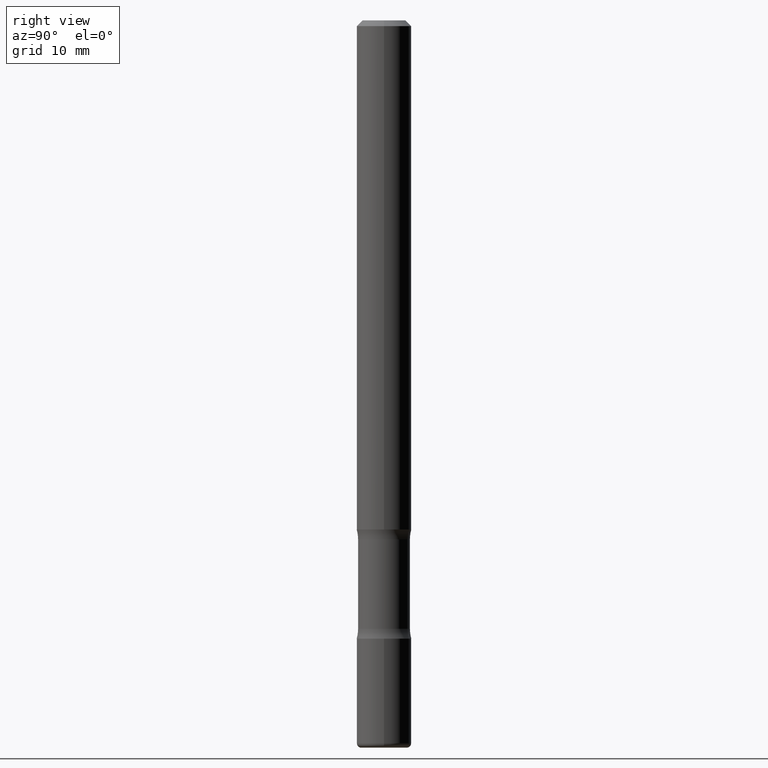
[diagram: clean part render]
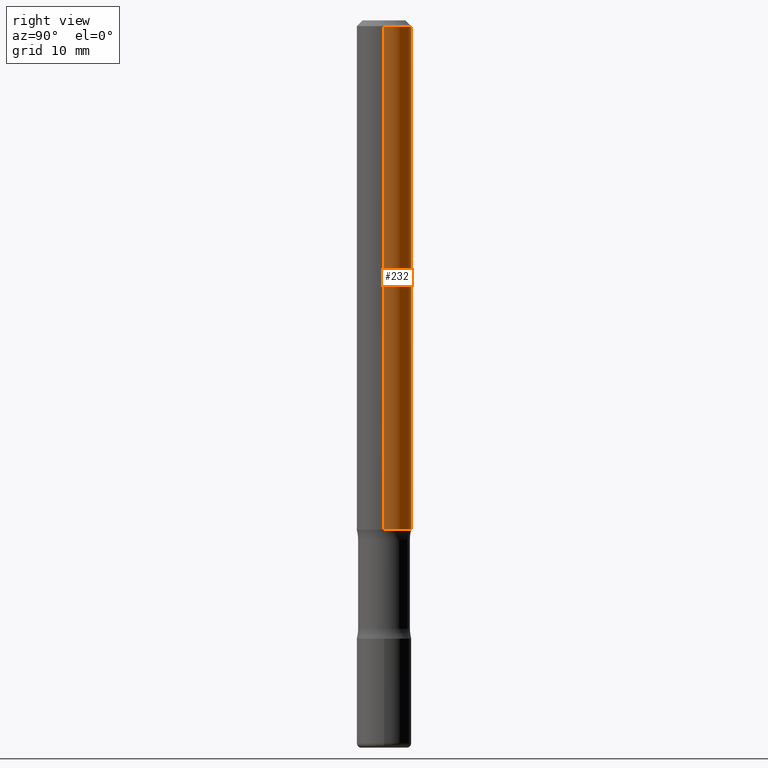
[diagram: same view with one face highlighted and labeled with its STEP entity id]
A machine part, right view. The second image highlights one B-rep face of the part: STEP entity #232.
In plain terms, the highlighted cylindrical surface (edge-blend (fillet) strip) has radius 2.3812 mm, axis along (-0, 0, 1).
Its self-contained STEP definition (entity closure, byte-faithful):
#16 = CARTESIAN_POINT ( 'NONE',  ( 4.890937612370276662E-31, -6.982962677686296539E-17, -0.02000000000000001776 ) ) ;
#28 = CARTESIAN_POINT ( 'NONE',  ( 0.09375000000000004163, -6.764745094008592175E-15, -1.750000000000000000 ) ) ;
#40 = CIRCLE ( 'NONE', #146, 0.09374999999999981959 ) ;
#49 = VERTEX_POINT ( 'NONE', #159 ) ;
#52 = DIRECTION ( 'NONE',  ( 1.000000000000000000, -6.982962677686266711E-15, 4.876176775795935793E-29 ) ) ;
#91 = LINE ( 'NONE', #250, #92 ) ;
#92 = VECTOR ( 'NONE', #428, 39.37007874015748143 ) ;
#109 = ORIENTED_EDGE ( 'NONE', *, *, #545, .F. ) ;
#112 = CARTESIAN_POINT ( 'NONE',  ( -0.09375000000000004163, -2.423827170101085722E-15, -1.750000000000000000 ) ) ;
#120 = ORIENTED_EDGE ( 'NONE', *, *, #526, .T. ) ;
#121 = CIRCLE ( 'NONE', #457, 0.09375000000000004163 ) ;
#126 = VERTEX_POINT ( 'NONE', #112 ) ;
#132 = DIRECTION ( 'NONE',  ( 1.000000000000000000, -6.982962677686267499E-15, 0.000000000000000000 ) ) ;
#136 = CYLINDRICAL_SURFACE ( 'NONE', #228, 0.09374999999999991673 ) ;
#146 = AXIS2_PLACEMENT_3D ( 'NONE', #16, #210, #132 ) ;
#152 = EDGE_CURVE ( 'NONE', #49, #259, #40, .T. ) ;
#159 = CARTESIAN_POINT ( 'NONE',  ( 0.09374999999999981959, -7.130013140679428044E-16, -0.02000000000000001776 ) ) ;
#165 = EDGE_CURVE ( 'NONE', #126, #259, #91, .T. ) ;
#196 = DIRECTION ( 'NONE',  ( -2.445468806185136597E-29, 3.491481338843145583E-15, 1.000000000000000000 ) ) ;
#210 = DIRECTION ( 'NONE',  ( -2.445468806185136597E-29, 3.491481338843145583E-15, 1.000000000000000000 ) ) ;
#228 = AXIS2_PLACEMENT_3D ( 'NONE', #473, #419, #52 ) ;
#232 = ADVANCED_FACE ( 'NONE', ( #529 ), #136, .T. ) ;
#236 = VECTOR ( 'NONE', #352, 39.37007874015748143 ) ;
#250 = CARTESIAN_POINT ( 'NONE',  ( -0.09374999999999991673, 6.661338147750933326E-16, -4.611501647113969791E-30 ) ) ;
#259 = VERTEX_POINT ( 'NONE', #381 ) ;
#302 = CARTESIAN_POINT ( 'NONE',  ( 4.279570410823988484E-29, -6.110092342975504671E-15, -1.750000000000000000 ) ) ;
#352 = DIRECTION ( 'NONE',  ( -2.445468806185136877E-29, 3.491481338843145188E-15, 1.000000000000000000 ) ) ;
#358 = DIRECTION ( 'NONE',  ( 1.000000000000000000, -6.982962677686269866E-15, 0.000000000000000000 ) ) ;
#363 = VERTEX_POINT ( 'NONE', #28 ) ;
#381 = CARTESIAN_POINT ( 'NONE',  ( -0.09374999999999981959, 5.848231242562233185E-16, -0.02000000000000001776 ) ) ;
#414 = ORIENTED_EDGE ( 'NONE', *, *, #165, .T. ) ;
#419 = DIRECTION ( 'NONE',  ( -2.445468806185136597E-29, 3.491481338843145583E-15, 1.000000000000000000 ) ) ;
#428 = DIRECTION ( 'NONE',  ( -2.445468806185136877E-29, 3.491481338843145188E-15, 1.000000000000000000 ) ) ;
#457 = AXIS2_PLACEMENT_3D ( 'NONE', #302, #196, #358 ) ;
#473 = CARTESIAN_POINT ( 'NONE',  ( 0.000000000000000000, 0.000000000000000000, 0.000000000000000000 ) ) ;
#482 = ORIENTED_EDGE ( 'NONE', *, *, #152, .F. ) ;
#495 = LINE ( 'NONE', #543, #236 ) ;
#509 = EDGE_LOOP ( 'NONE', ( #120, #414, #482, #109 ) ) ;
#526 = EDGE_CURVE ( 'NONE', #363, #126, #121, .T. ) ;
#529 = FACE_OUTER_BOUND ( 'NONE', #509, .T. ) ;
#543 = CARTESIAN_POINT ( 'NONE',  ( 0.09374999999999991673, -6.546527510330869125E-16, 4.571415727308685602E-30 ) ) ;
#545 = EDGE_CURVE ( 'NONE', #363, #49, #495, .T. ) ;